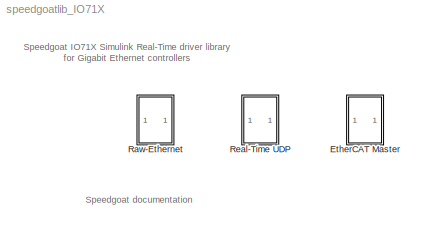
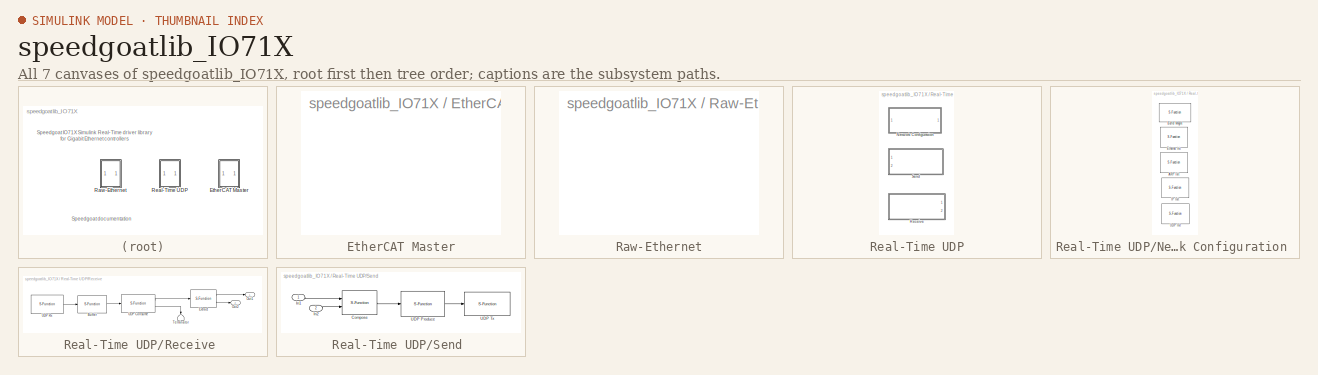
[diagram: thumbnail index - all 7 canvases of the model, root first then tree order]
MODEL speedgoatlib_IO71X
KIND library
BLOCK [SubSystem] EtherCAT Master
  FunctionWithSeparateData = off
  MaskHideContents = off
  MinAlgLoopOccurrences = off
  Opaque = off
  OpenFcn = xpcethercatlib
  Ports = []
  PropExecContextOutsideSubsystem = off
  RTWSystemCode = Auto
  RequestExecContextInheritance = off
BLOCK [SubSystem] Raw-Ethernet
  FunctionWithSeparateData = off
  MaskHideContents = off
  MinAlgLoopOccurrences = off
  Opaque = off
  OpenFcn = xpcethernetlib
  Ports = []
  PropExecContextOutsideSubsystem = off
  RTWSystemCode = Auto
  RequestExecContextInheritance = off
BLOCK [SubSystem] Real-Time UDP
  FunctionWithSeparateData = off
  MaskHideContents = off
  MinAlgLoopOccurrences = off
  Opaque = off
  Ports = []
  PropExecContextOutsideSubsystem = off
  RTWSystemCode = Auto
  RequestExecContextInheritance = off
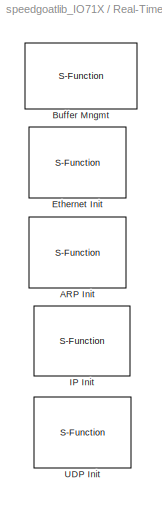
BLOCK [SubSystem] Real-Time UDP/Network Configuration 
  FunctionWithSeparateData = off
  MaskCallbackString = |||||||
  MaskDescription = Network Configuration
  MaskDisplay = disp(['Speedgoat\\nI8254x (IO71X)\\nNetwork Configuration\\nEthernet controller: ', num2str(EthController)]);
  MaskEnableString = on,on,on,on,on,on,on,on
  MaskHelp = eval('xpcdoc(''RT_NETWORK_CONFIGURATION'')');
  MaskHideContents = off
  MaskIconFrame = on
  MaskIconOpaque = on
  MaskIconRotate = none
  MaskIconUnits = autoscale
  MaskInitialization = EthDrv = 2;\nIpAddress = ipaddr(IpAddress);\nSubnetMask = ipaddr(SubnetMask);\nGateway = ipaddr(Gateway);
  MaskPortRotate = default
  MaskPromptString = Ethernet controller|IP Address:|Subnet Mask:|Gateway:|Ethernet Driver|PCI Bus:|PCI Slot:|Buffer pool sizes (256, 512, 1024, 2048)
  MaskStyleString = popup(1|2|3|4|5|6|7|8|9|10),edit,edit,edit,popup(Intel 8255x|Intel Gigabit),edit,edit,edit
  MaskTabNameString = Device,Device,Addressing,Addressing,Device,Device,Device,Advanced
  MaskToolTipString = on,on,on,on,on,on,on,on
  MaskTunableValueString = on,on,on,on,on,on,on,on
  MaskType = xpcnwconfig
  MaskValueString = 1|0.0.0.0|255.255.255.0|0.0.0.0|Intel Gigabit|0|0|[100 10 10 200]
  MaskVariables = EthController=@1;IpAddress=&2;SubnetMask=&3;Gateway=&4;EthDrv=@5;PciBus=@6;PciSlot=@7;BufferSizes=@8;
  MaskVisibilityString = on,on,on,on,off,on,on,on
  MinAlgLoopOccurrences = off
  Opaque = off
  Ports = []
  PropExecContextOutsideSubsystem = off
  RTWSystemCode = Auto
  RequestExecContextInheritance = off
BLOCK [S-Function] Real-Time UDP/Network Configuration /ARP Init 
  EnableBusSupport = off
  FunctionName = xpcdebugarpinit
  MaskCallbackString = |||||||||||||||
  MaskDescription = ARP Init
  MaskDisplay = disp('ARP Init');
  MaskEnableString = on,on,on,on,on,on,on,on,on,on,on,on,on,on,on,on
  MaskHelp = web('arpdebug.htm',  '-helpbrowser');
  MaskIconFrame = on
  MaskIconOpaque = on
  MaskIconRotate = none
  MaskIconUnits = autoscale
  MaskInitialization = xpclinklib('xpciplib');\n\n
  MaskPortRotate = default
  MaskPromptString = Interface|IP Address|Subnet Mask|Gateway|Ethernet ID|Block ID|Sample Time|Flags|Statistics Port|Retry|Timeout|Expiration|[Static IP]|[Static MAC]|[Discovery IP]|[Multicast IP]
  MaskSelfModifiable = on
  MaskStyleString = edit,edit,edit,edit,edit,edit,edit,edit,checkbox,edit,edit,edit,edit,edit,edit,edit
  MaskTabNameString = ARP,ARP,ARP,ARP,ARP,ARP,ARP,Advanced,Advanced,Timeouts,Timeouts,Timeouts,ARP Table,ARP Table,ARP Table,Multicast
  MaskToolTipString = on,on,on,on,on,on,on,on,on,on,on,on,on,on,on,on
  MaskTunableValueString = on,on,on,on,on,on,on,on,on,on,on,on,on,on,on,on
  MaskType = arpinit
  MaskValueString = EthController-1|IpAddress|SubnetMask|Gateway|EthController|EthController-1|-1|hex2dec('00000697')|off|5|20|20*60|[]|[]|[]|[]
  MaskVariables = Interface=@1;IpAddress=@2;SubnetMask=@3;Gateway=@4;EthernetId=@5;BlockId=@6;SampleTime=@7;Flags=@8;Stats=@9;Retry=@10;Timeout=@11;Expiration=@12;StaticAddressListIp=@13;StaticAddressListMac=@14;DiscoveryList=@15;MulticastList=@16;
  MaskVisibilityString = on,on,on,on,on,on,on,on,on,on,on,on,on,on,on,on
  Parameters = Stats, Interface, IpAddress, SubnetMask, Gateway, EthernetId, Flags, BlockId, Retry, Timeout, Expiration, StaticAddressListIp, StaticAddressListMac, DiscoveryList, MulticastList, SampleTime
  Ports = []
  Priority = 0
BLOCK [S-Function] Real-Time UDP/Network Configuration /Buffer Mngmt 
  EnableBusSupport = off
  FunctionName = xpcnb
  MaskCallbackString = ||
  MaskDescription = Network Buffer Initialization
  MaskDisplay = disp('Network Buffer\\nManagement');
  MaskEnableString = on,on,on
  MaskHelp = eval('xpcdoc(''NB_Init'')');
  MaskIconFrame = on
  MaskIconOpaque = on
  MaskIconRotate = none
  MaskIconUnits = autoscale
  MaskInitialization = [MaskDisplay, pool_sizes] = mxpcnbinit(2, PoolSizes);\n\nset_param(gcb, 'MaskDisplay', MaskDisplay);
  MaskPortRotate = default
  MaskPromptString = Sample time:|Buffer pool sizes (256, 512, 1024, 2048):|Display tuning information
  MaskSelfModifiable = on
  MaskStyleString = edit,edit,checkbox
  MaskTabNameString = Main,Advanced,Advanced
  MaskToolTipString = on,on,on
  MaskTunableValueString = on,on,on
  MaskType = xpcnbinit
  MaskValueString = -1|BufferSizes|on
  MaskVariables = SampleTime=@1;PoolSizes=@2;ShowTune=@3;
  MaskVisibilityString = on,on,on
  Parameters = pool_sizes, SampleTime, ShowTune
  Ports = []
  Priority = -1
BLOCK [S-Function] Real-Time UDP/Network Configuration /Ethernet Init 
  EnableBusSupport = off
  FunctionName = xpcetherinit
  MaskCallbackString = |||||enables = get_param(gcb, 'MaskVisibilities'); \nif strcmp('Specify', get_param(gcb, 'AddressSource'))\n    enables{strmatch('MAC',fieldnames(get_param(gcb,'DialogParameters')))} = 'on';\nelse\n    enables{strmatch('MAC',fieldnames(get_param(gcb,'DialogParameters')))} = 'off';\nend\nset_param(gcb, 'MaskVisibilities', enables);||||||||||||
  MaskDescription = Ethernet Initialization
  MaskDisplay = disp('Ethernet\\nInitialization\\nbus: 0 slot: 0\\nId: 1\\n');
  MaskEnableString = on,on,on,on,on,on,on,on,on,on,on,on,on,on,on,on,on,on
  MaskHelp = eval('xpcdoc(''Ether_Init'')');
  MaskIconFrame = on
  MaskIconOpaque = on
  MaskIconRotate = none
  MaskIconUnits = autoscale
  MaskInitialization = VendorID = -1;\nDeviceID = -1;\n\n[MaskDisplay, VendorID, DeviceID, mac, numMulti, multicast] = mxpcetherinit(2, ID, Driver, Bus, Slot, MAC, Multicast);\n\nset_param(gcb, 'MaskDisplay', MaskDisplay);
  MaskPortRotate = default
  MaskPromptString = Device ID:|Driver:|PCI bus:|PCI slot:|Sample time:|Address source:|MAC:|Tx source address from model|Rx promiscuous|Multicast address list:|Rx bad frames|Rx short frames|Max MTU:|Tx threshold:|Tx buffers:|Rx buffers:|Display tuning information|num rx blocks
  MaskSelfModifiable = on
  MaskStyleString = edit,edit,edit,edit,edit,popup(EEPROM|Specify),edit,checkbox,checkbox,edit,checkbox,checkbox,edit,edit,edit,edit,checkbox,edit
  MaskTabNameString = Device,Device,Device,Device,Device,Addressing,Addressing,Addressing,Addressing,Addressing,Advanced,Advanced,Advanced,Advanced,Advanced,Advanced,Advanced,Advanced
  MaskToolTipString = on,on,on,on,on,on,on,on,on,on,on,on,on,on,on,on,on,on
  MaskTunableValueString = on,on,on,on,on,on,on,on,on,on,on,on,on,on,on,on,on,on
  MaskType = xpcetherinit
  MaskValueString = EthController|EthDrv|PciBus|PciSlot|-1|EEPROM|macaddr('00:00:00:00:00:00')|off|off|{}|off|off|1518|224|128|64|off|1
  MaskVariables = ID=@1;Driver=@2;Bus=@3;Slot=@4;SampleTime=@5;AddressSource=@6;MAC=@7;TxSA=@8;RxPromiscuous=@9;Multicast=@10;RxBad=@11;RxShort=@12;MaxMTU=@13;TxThreshold=@14;TxBuffers=@15;RxBuffers=@16;ShowTune=@17;NumRxBlks=@18;
  MaskVisibilityString = on,on,on,on,on,on,off,off,on,on,on,on,on,on,on,on,on,off
  Parameters = ID, Driver, Bus, Slot, VendorID, DeviceID, AddressSource, mac, TxSA, RxPromiscuous, RxBad, RxShort, MaxMTU, TxThreshold, TxBuffers, RxBuffers, ShowTune, numMulti, multicast,   NumRxBlks, SampleTime
  Ports = []
  Priority = -1
BLOCK [S-Function] Real-Time UDP/Network Configuration /IP Init 
  EnableBusSupport = off
  FunctionName = xpcdebugipinit
  MaskCallbackString = |||||||||||
  MaskDescription = IP Init
  MaskDisplay = disp('IP Init');
  MaskEnableString = on,on,on,on,on,on,on,on,on,on,on,on
  MaskHelp = web('ipdebug.htm',  '-helpbrowser');
  MaskIconFrame = on
  MaskIconOpaque = on
  MaskIconRotate = none
  MaskIconUnits = autoscale
  MaskInitialization = xpclinklib('xpciplib');\n\n
  MaskPortRotate = default
  MaskPromptString = Group|[ARP ID]|[IP Address]|[Subnet Mask]|Default Gateway|Default Interface|Sample Time|Flags|ToS|Starting Id|TTL|Statistics Port
  MaskSelfModifiable = on
  MaskStyleString = edit,edit,edit,edit,edit,edit,edit,edit,edit,edit,edit,checkbox
  MaskTabNameString = IP,IP,IP,IP,IP,IP,IP,Advanced,Advanced,Advanced,Advanced,Advanced
  MaskToolTipString = on,on,on,on,on,on,on,on,on,on,on,on
  MaskTunableValueString = on,on,on,on,on,on,on,on,on,on,on,on
  MaskType = ipinit
  MaskValueString = EthController-1|EthController-1|[IpAddress]|[SubnetMask]|Gateway|0|-1|hex2dec('00000005')|hex2dec('00')|10000|64|off
  MaskVariables = Group=@1;ArpId=@2;IpAddress=@3;SubnetMask=@4;DefaultGateway=@5;DefaultInterface=@6;SampleTime=@7;Flags=@8;ToS=@9;StartingId=@10;TTL=@11;Stats=@12;
  MaskVisibilityString = on,on,on,on,on,on,on,on,on,on,on,on
  Parameters = Stats, Group, ArpId, IpAddress, SubnetMask, DefaultGateway, DefaultInterface, Flags, ToS, StartingId, TTL, SampleTime
  Ports = []
  Priority = 1
BLOCK [S-Function] Real-Time UDP/Network Configuration /UDP Init 
  EnableBusSupport = off
  FunctionName = xpcdebugudpinit
  MaskCallbackString = ||||
  MaskDescription = UDP Init
  MaskDisplay = disp('UDP Init');
  MaskEnableString = on,on,on,on,on
  MaskHelp = web('udpdebug.htm',  '-helpbrowser');
  MaskIconFrame = on
  MaskIconOpaque = on
  MaskIconRotate = none
  MaskIconUnits = autoscale
  MaskInitialization = xpclinklib('xpciplib');\n\n
  MaskPortRotate = default
  MaskPromptString = Group|Starting Port|Flags|Sample Time|Statistics Port
  MaskSelfModifiable = on
  MaskStyleString = edit,edit,edit,edit,checkbox
  MaskTabNameString = IP,Advanced,Advanced,IP,Advanced
  MaskToolTipString = on,on,on,on,on
  MaskTunableValueString = on,on,on,on,on
  MaskType = udpinit
  MaskValueString = EthController-1|10000|hex2dec('00000001')|-1|off
  MaskVariables = Group=@1;StartingPort=@2;Flags=@3;SampleTime=@4;Stats=@5;
  MaskVisibilityString = on,on,on,on,on
  Parameters = Stats, Group, StartingPort, Flags, SampleTime
  Ports = []
  Priority = 2
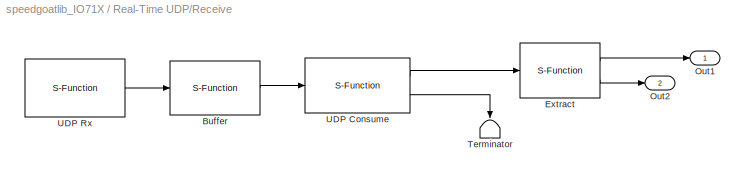
BLOCK [SubSystem] Real-Time UDP/Receive 
  FunctionWithSeparateData = off
  MaskCallbackString = ||||
  MaskDescription = UDP Receive (adapted by Speedgoat)
  MaskDisplay = disp(['Speedgoat\\nI8254x (IO71X)\\nUDP Receive\\nEthernet controller: ', num2str(EthController)])
  MaskEnableString = on,on,on,on,on
  MaskHelp = helpview(fullfile(docroot, 'mapfiles', 'xpc.map'), 'RT_UDP_RECEIVE')
  MaskHideContents = off
  MaskIconFrame = on
  MaskIconOpaque = on
  MaskIconRotate = none
  MaskIconUnits = autoscale
  MaskInitialization = Receive1 = ipaddr(Receive1);
  MaskPortRotate = default
  MaskPromptString = Ethernet controller:|IP address to receive from (0.0.0.0 for accepting all):|IP port to receive from:|Output port width:|Sample time:
  MaskStyleString = popup(1|2|3|4|5|6|7|8|9|10),edit,edit,edit,edit
  MaskToolTipString = on,on,on,on,on
  MaskTunableValueString = on,on,on,on,on
  MaskType = receive
  MaskValueString = 1|0.0.0.0|25000|1|-1
  MaskVariables = EthController=@1;Receive1=&2;Receive2=@3;Receive3=@4;Receive4=@5;
  MaskVisibilityString = on,on,on,on,on
  MinAlgLoopOccurrences = off
  Opaque = off
  Ports = [0, 2]
  PropExecContextOutsideSubsystem = off
  RTWSystemCode = Auto
  RequestExecContextInheritance = off
BLOCK [S-Function] Real-Time UDP/Receive /Buffer 
  EnableBusSupport = off
  FunctionName = xpcnbbuffer
  MaskCallbackString = ||
  MaskDescription = Network Buffer Buffering\n\nChain size = inf --> No buffering, all packets passed through\nChain size = 0   --> Deletes all packets, none passed through\nChain size > 0   --> Passes through first \"Chain size\" packets\nChain size < 0   --> Passes through last \"Chain size\" packets\n\nBuffer size = inf --> All remaining packets are buffered, none are deleted\nBuffer size = 0   --> No buffering, d...<+359ch>
  MaskDisplay = disp('NB<path>');port_label('output', 1, '1');
  MaskEnableString = on,on,on
  MaskHelp = helpview(fullfile(docroot, 'mapfiles', 'xpc.map'), 'NB_Buffer')
  MaskIconFrame = on
  MaskIconOpaque = on
  MaskIconRotate = none
  MaskIconUnits = autoscale
  MaskInitialization = [MaskDisplay, chainSize, bufferSize] = mxpcnbbuffer(2, ChainSize, BufferSize, Threshold);\n\nset_param(gcb, 'MaskDisplay', MaskDisplay);
  MaskPortRotate = default
  MaskPromptString = Chain size:|Buffer size:|Threshold:
  MaskSelfModifiable = on
  MaskStyleString = edit,edit,edit
  MaskToolTipString = on,on,on
  MaskTunableValueString = on,on,on
  MaskType = xpcnbbuffer
  MaskValueString = 1|2|0
  MaskVariables = ChainSize=@1;BufferSize=@2;Threshold=@3;
  MaskVisibilityString = on,on,on
  Parameters = chainSize, bufferSize, Threshold
  Ports = [1, 1]
BLOCK [S-Function] Real-Time UDP/Receive /Extract 
  EnableBusSupport = off
  FunctionName = xpcnbextract
  MaskDescription = Network Buffer Extract
  MaskDisplay = disp('NB Extract\\n');port_label('output', 2, 'length');
  MaskEnableString = on
  MaskHelp = helpview(fullfile(docroot, 'mapfiles', 'xpc.map'), 'NB_Extract')
  MaskIconFrame = on
  MaskIconOpaque = on
  MaskIconRotate = none
  MaskIconUnits = autoscale
  MaskInitialization = [packetSize] = mxpcnbextract(2,PacketSize);
  MaskPortRotate = default
  MaskPromptString = Packet size (-1: inherit):
  MaskSelfModifiable = on
  MaskStyleString = edit
  MaskToolTipString = on
  MaskTunableValueString = on
  MaskType = xpcnbextract
  MaskValueString = Receive3
  MaskVariables = PacketSize=@1;
  MaskVisibilityString = on
  Parameters = packetSize
  Ports = [1, 2]
BLOCK [Outport] Real-Time UDP/Receive /Out1
  DataType = uint8
  IconDisplay = Port number
  OutDataTypeStr = uint8
BLOCK [Outport] Real-Time UDP/Receive /Out2
  DataType = double
  IconDisplay = Port number
  OutDataTypeStr = double
  Port = 2
BLOCK [Terminator] Real-Time UDP/Receive /Terminator
BLOCK [S-Function] Real-Time UDP/Receive /UDP Consume 
  EnableBusSupport = off
  FunctionName = xpcudpconsume
  MaskCallbackString = ||
  MaskDescription = UDP Consume
  MaskDisplay = if VectorSize\n    disp('UDP Consume<path>');\n    port_label('output', 1, 'Buffers');\n    port_label('output', 2, 'Source IP Address');\n    port_label('output', 3, 'Destination IP Address');\n    port_label('output', 4, 'Local UDP Port');\n    port_label('output', 5, 'Remote UDP Port');\n    port_label('output', 6, 'Chain Size');\nelse\n    disp('UDP Consume');\n    port_label('o...<+71ch>
  MaskEnableString = on,on,on
  MaskHelp = helpview(fullfile(docroot, 'mapfiles', 'xpc.map'), 'RT_UDP_CONSUME')
  MaskIconFrame = on
  MaskIconOpaque = on
  MaskIconRotate = none
  MaskIconUnits = autoscale
  MaskPortRotate = default
  MaskPromptString = IP Group|Output port width:|Sample time:
  MaskSelfModifiable = on
  MaskStyleString = edit,edit,edit
  MaskToolTipString = on,on,on
  MaskTunableValueString = on,on,on
  MaskType = udpconsume
  MaskValueString = 0|0|Receive4
  MaskVariables = Group=@1;VectorSize=@2;SampleTime=@3;
  MaskVisibilityString = off,on,on
  Parameters = Group, VectorSize, SampleTime
  Ports = [1, 2]
BLOCK [S-Function] Real-Time UDP/Receive /UDP Rx 
  EnableBusSupport = off
  FunctionName = xpcudprx
  MaskCallbackString = |||||
  MaskDescription = UDP Rx
  MaskDisplay = disp('UDP Rx');
  MaskEnableString = on,on,on,on,on,on
  MaskHelp = helpview(fullfile(docroot, 'mapfiles', 'xpc.map'), 'RT_UDP_RX')
  MaskIconFrame = on
  MaskIconOpaque = on
  MaskIconRotate = none
  MaskIconUnits = autoscale
  MaskInitialization = if SourceAddress == 0\n    sip = 3;\nelse\n    sip = 1;\nend
  MaskPortRotate = default
  MaskPromptString = IP Group|Source IP Address|IP address to receive from (0.0.0.0 for accepting all):|Local UDP Port|IP port to receive from:|Sample time:
  MaskSelfModifiable = on
  MaskStyleString = edit,popup(Specify|Port|Any),edit,popup(Specify|Port|Any),edit,edit
  MaskToolTipString = on,on,on,on,on,on
  MaskTunableValueString = on,on,on,on,on,on
  MaskType = udprx
  MaskValueString = EthController-1|Any|Receive1|Specify|Receive2|Receive4
  MaskVariables = Group=@1;sip=@2;SourceAddress=@3;lup=@4;LocalPort=@5;SampleTime=@6;
  MaskVisibilityString = on,off,on,off,on,on
  Parameters = Group, SourceAddress, sip, LocalPort, lup, SampleTime
  Ports = [0, 1]
  Priority = 5
BLOCK [SubSystem] Real-Time UDP/Send 
  FunctionWithSeparateData = off
  MaskCallbackString = ||||
  MaskDescription = UDP Send (adapted by Speedgoat)
  MaskDisplay = disp(['Speedgoat\\nI8254x (IO71X)\\nUDP Send\\nEthernet controller: ',num2str(EthController)])
  MaskEnableString = on,on,on,on,on
  MaskHelp = helpview(fullfile(docroot, 'mapfiles', 'xpc.map'), 'RT_UDP_SEND')
  MaskHideContents = off
  MaskIconFrame = on
  MaskIconOpaque = on
  MaskIconRotate = none
  MaskIconUnits = autoscale
  MaskInitialization = Send1 = ipaddr(Send1);
  MaskPortRotate = default
  MaskPromptString = Ethernet controller:|IP address to send to (255.255.255.255 for broadcast):|Remote IP port to send to:|Use the following local IP port (-1 for automatic assignment):|Sample time:
  MaskStyleString = popup(1|2|3|4|5|6|7|8|9|10),edit,edit,edit,edit
  MaskToolTipString = on,on,on,on,on
  MaskTunableValueString = on,on,on,on,on
  MaskType = send
  MaskValueString = 1|255.255.255.255|25000|-1|-1
  MaskVariables = EthController=@1;Send1=&2;Send2=@3;Send3=@4;Send4=@5;
  MaskVisibilityString = on,on,on,on,on
  MinAlgLoopOccurrences = off
  Opaque = off
  Ports = [2]
  PropExecContextOutsideSubsystem = off
  RTWSystemCode = Auto
  RequestExecContextInheritance = off
BLOCK [S-Function] Real-Time UDP/Send /Compose 
  EnableBusSupport = off
  FunctionName = xpcnbcompose
  MaskDescription = Network Buffer Compose
  MaskDisplay = disp('NB Compose\\n');port_label('input', 2, 'length');\n
  MaskHelp = helpview(fullfile(docroot, 'mapfiles', 'xpc.map'), 'NB_Compose')
  MaskIconFrame = on
  MaskIconOpaque = on
  MaskIconRotate = none
  MaskIconUnits = autoscale
  MaskInitialization = mxpcnbcompose(2);\n
  MaskPortRotate = default
  MaskSelfModifiable = on
  MaskType = xpcnbcompose
  Ports = [2, 1]
BLOCK [Inport] Real-Time UDP/Send /In1
  DataType = uint8
  IconDisplay = Port number
  OutDataTypeStr = uint8
BLOCK [Inport] Real-Time UDP/Send /In2
  DataType = double
  IconDisplay = Port number
  OutDataTypeStr = double
  Port = 2
BLOCK [S-Function] Real-Time UDP/Send /UDP Produce 
  EnableBusSupport = off
  FunctionName = xpcudpproduce
  MaskCallbackString = |||||||||
  MaskDescription = UDP Produce
  MaskDisplay = disp('UDP Produce');
  MaskEnableString = on,on,on,on,on,on,on,on,on,on
  MaskHelp = helpview(fullfile(docroot, 'mapfiles', 'xpc.map'), 'RT_UDP_PRODUCE')
  MaskIconFrame = on
  MaskIconOpaque = on
  MaskIconRotate = none
  MaskIconUnits = autoscale
  MaskInitialization = if LocPort == -1\n    lup = 3;\nelse\n    lup = 1;\nend\n\nSrcIp = ipaddr(SrcIp);\nDstIp = ipaddr(DstIp);
  MaskPortRotate = default
  MaskPromptString = IP Group|Source IP Address|Source IP Address|Destination IP Address|IP address to send to (255.255.255.255 for broadcast):|Remote UDP Port|Remote IP port to send to:|Local UDP Port|Use the following local IP port (-1 for automatic assignment):|Sample time:
  MaskSelfModifiable = on
  MaskStyleString = edit,popup(Specify|Port|Auto),edit,popup(Specify|Port),edit,popup(Specify|Port),edit,popup(Specify|Port|Auto),edit,edit
  MaskToolTipString = on,on,on,on,on,on,on,on,on,on
  MaskTunableValueString = on,on,on,on,on,on,on,on,on,on
  MaskType = udpproduce
  MaskValueString = EthController-1|Auto|0.0.0.0|Specify|Send1|Specify|Send2|Auto|Send3|Send4
  MaskVariables = Group=@1;sip=@2;SrcIp=&3;dip=@4;DstIp=@5;rup=@6;RemPort=@7;lup=@8;LocPort=@9;SampleTime=@10;
  MaskVisibilityString = on,off,off,off,on,off,on,off,on,on
  Parameters = Group, SrcIp, sip, DstIp, dip, LocPort, lup, RemPort, rup, SampleTime
  Ports = [1, 1]
  Priority = 5
BLOCK [S-Function] Real-Time UDP/Send /UDP Tx 
  EnableBusSupport = off
  FunctionName = xpcudptx
  MaskCallbackString = |||
  MaskDescription = UDP Tx
  MaskDisplay = disp('UDP Tx');
  MaskEnableString = on,on,on,on
  MaskHelp = eval('xpcdoc(''RT_UDP_TX'')');
  MaskIconFrame = on
  MaskIconOpaque = on
  MaskIconRotate = none
  MaskIconUnits = autoscale
  MaskPortRotate = default
  MaskPromptString = IP Group|TTL|ToS|Sample Time
  MaskSelfModifiable = on
  MaskStyleString = edit,edit,edit,edit
  MaskToolTipString = on,on,on,on
  MaskTunableValueString = on,on,on,on
  MaskType = udptx
  MaskValueString = EthController-1|-1|-1|Send4
  MaskVariables = Group=@1;TTL=@2;ToS=@3;SampleTime=@4;
  MaskVisibilityString = on,off,off,on
  Parameters = Group, TTL, ToS, SampleTime
  Ports = [1]
  Priority = 5
ANNOTATION (root): Speedgoat IO71X Simulink Real-Time driver library\nfor Gigabit Ethernet controllers
ANNOTATION (root): Speedgoat documentation
LINE Real-Time UDP/Receive /Buffer :1 -> Real-Time UDP/Receive /UDP Consume :1
LINE Real-Time UDP/Receive /Extract :1 -> Real-Time UDP/Receive /Out1:1
LINE Real-Time UDP/Receive /Extract :2 -> Real-Time UDP/Receive /Out2:1
LINE Real-Time UDP/Receive /UDP Consume :1 -> Real-Time UDP/Receive /Extract :1
LINE Real-Time UDP/Receive /UDP Consume :2 -> Real-Time UDP/Receive /Terminator:1
LINE Real-Time UDP/Receive /UDP Rx :1 -> Real-Time UDP/Receive /Buffer :1
LINE Real-Time UDP/Send /Compose :1 -> Real-Time UDP/Send /UDP Produce :1
LINE Real-Time UDP/Send /In1:1 -> Real-Time UDP/Send /Compose :1
LINE Real-Time UDP/Send /In2:1 -> Real-Time UDP/Send /Compose :2
LINE Real-Time UDP/Send /UDP Produce :1 -> Real-Time UDP/Send /UDP Tx :1
note: 2 file-system paths scrubbed to <path> (not preserved elsewhere — flat text is the only slx artifact)
